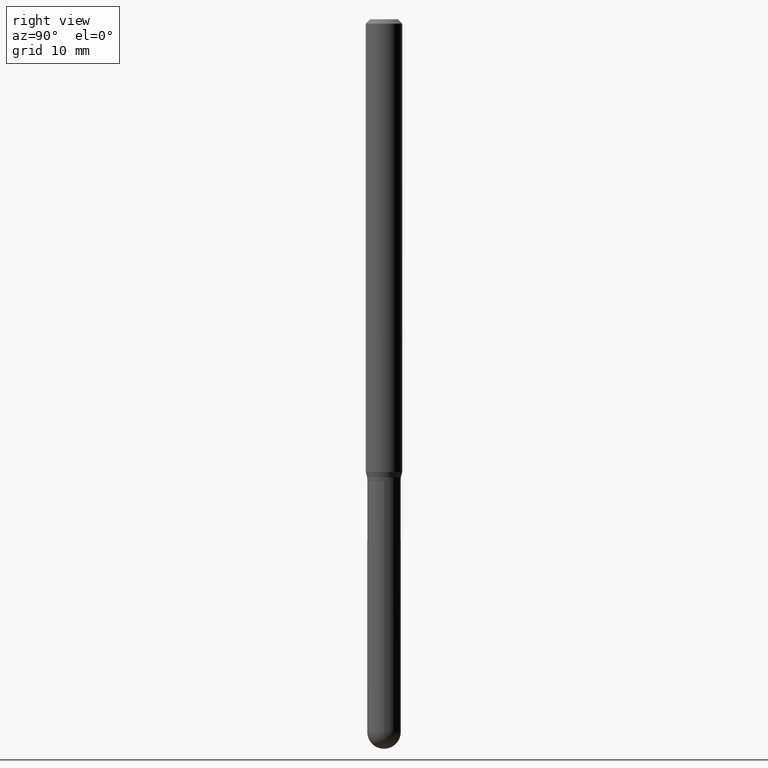
[diagram: clean part render]
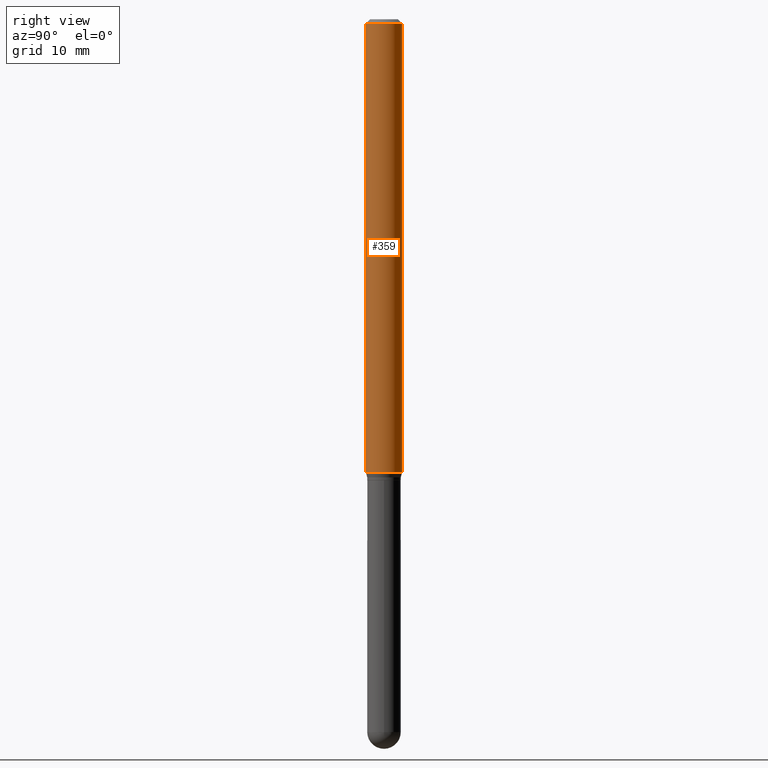
[diagram: same view with one face highlighted and labeled with its STEP entity id]
A machine part, right view. The second image highlights one B-rep face of the part: STEP entity #359.
In plain terms, the highlighted cylindrical surface (edge-blend (fillet) strip) has radius 1.5875 mm, axis along (-0, 0, 1).
Its self-contained STEP definition (entity closure, byte-faithful):
#1 = DIRECTION ( 'NONE',  ( -2.445559636082380444E-29, 3.491351265260575738E-15, 1.000000000000000000 ) ) ;
#5 = LINE ( 'NONE', #168, #262 ) ;
#10 = CARTESIAN_POINT ( 'NONE',  ( 3.668339454123573048E-31, -5.237026897890866417E-17, -0.01500000000000000812 ) ) ;
#12 = VERTEX_POINT ( 'NONE', #148 ) ;
#46 = EDGE_CURVE ( 'NONE', #299, #439, #379, .T. ) ;
#47 = CARTESIAN_POINT ( 'NONE',  ( 4.440892098501006787E-16, 0.06249999999999460154, -1.551339745962156513 ) ) ;
#57 = DIRECTION ( 'NONE',  ( -2.445559636082380444E-29, 3.491351265260575738E-15, 1.000000000000000000 ) ) ;
#124 = DIRECTION ( 'NONE',  ( -6.982962677686265922E-15, -1.000000000000000000, 3.483106191921935554E-15 ) ) ;
#128 = CARTESIAN_POINT ( 'NONE',  ( 4.440892098500625669E-16, 0.06250000000000000000, -2.182094540787859836E-16 ) ) ;
#129 = VECTOR ( 'NONE', #1, 39.37007874015748143 ) ;
#132 = CYLINDRICAL_SURFACE ( 'NONE', #147, 0.06250000000000000000 ) ;
#139 = EDGE_CURVE ( 'NONE', #299, #12, #5, .T. ) ;
#147 = AXIS2_PLACEMENT_3D ( 'NONE', #409, #57, #167 ) ;
#148 = CARTESIAN_POINT ( 'NONE',  ( -4.364351673553912750E-16, -0.06250000000000005551, -0.01499999999999979128 ) ) ;
#167 = DIRECTION ( 'NONE',  ( -6.982962677686265922E-15, -1.000000000000000000, 3.491351265260575738E-15 ) ) ;
#168 = CARTESIAN_POINT ( 'NONE',  ( -4.364351673553916201E-16, -0.06250000000000000000, 2.182094540787859836E-16 ) ) ;
#171 = DIRECTION ( 'NONE',  ( -2.445559636082380444E-29, 3.491351265260575738E-15, 1.000000000000000000 ) ) ;
#176 = VERTEX_POINT ( 'NONE', #332 ) ;
#197 = AXIS2_PLACEMENT_3D ( 'NONE', #331, #212, #327 ) ;
#201 = EDGE_CURVE ( 'NONE', #12, #176, #425, .T. ) ;
#212 = DIRECTION ( 'NONE',  ( -2.445559636082380444E-29, 3.491351265260575738E-15, 1.000000000000000000 ) ) ;
#262 = VECTOR ( 'NONE', #512, 39.37007874015748143 ) ;
#285 = FACE_OUTER_BOUND ( 'NONE', #450, .T. ) ;
#299 = VERTEX_POINT ( 'NONE', #484 ) ;
#318 = LINE ( 'NONE', #128, #129 ) ;
#327 = DIRECTION ( 'NONE',  ( -6.982962677686265922E-15, -1.000000000000000000, 4.370956789862821150E-15 ) ) ;
#331 = CARTESIAN_POINT ( 'NONE',  ( 3.793893864575343758E-29, -5.416271984913994824E-15, -1.551339745962156291 ) ) ;
#332 = CARTESIAN_POINT ( 'NONE',  ( 4.440892098501006787E-16, 0.06249999999999995143, -0.01500000000000022669 ) ) ;
#340 = ORIENTED_EDGE ( 'NONE', *, *, #139, .F. ) ;
#350 = EDGE_CURVE ( 'NONE', #439, #176, #318, .T. ) ;
#359 = ADVANCED_FACE ( 'NONE', ( #285 ), #132, .T. ) ;
#379 = CIRCLE ( 'NONE', #197, 0.06250000000000000000 ) ;
#409 = CARTESIAN_POINT ( 'NONE',  ( 0.000000000000000000, 0.000000000000000000, 0.000000000000000000 ) ) ;
#410 = ORIENTED_EDGE ( 'NONE', *, *, #350, .T. ) ;
#425 = CIRCLE ( 'NONE', #466, 0.06250000000000000000 ) ;
#426 = ORIENTED_EDGE ( 'NONE', *, *, #46, .T. ) ;
#439 = VERTEX_POINT ( 'NONE', #47 ) ;
#450 = EDGE_LOOP ( 'NONE', ( #426, #410, #496, #340 ) ) ;
#466 = AXIS2_PLACEMENT_3D ( 'NONE', #10, #171, #124 ) ;
#484 = CARTESIAN_POINT ( 'NONE',  ( -4.364351673553535083E-16, -0.06250000000000539846, -1.551339745962156069 ) ) ;
#496 = ORIENTED_EDGE ( 'NONE', *, *, #201, .F. ) ;
#512 = DIRECTION ( 'NONE',  ( -2.445559636082380444E-29, 3.491351265260575738E-15, 1.000000000000000000 ) ) ;